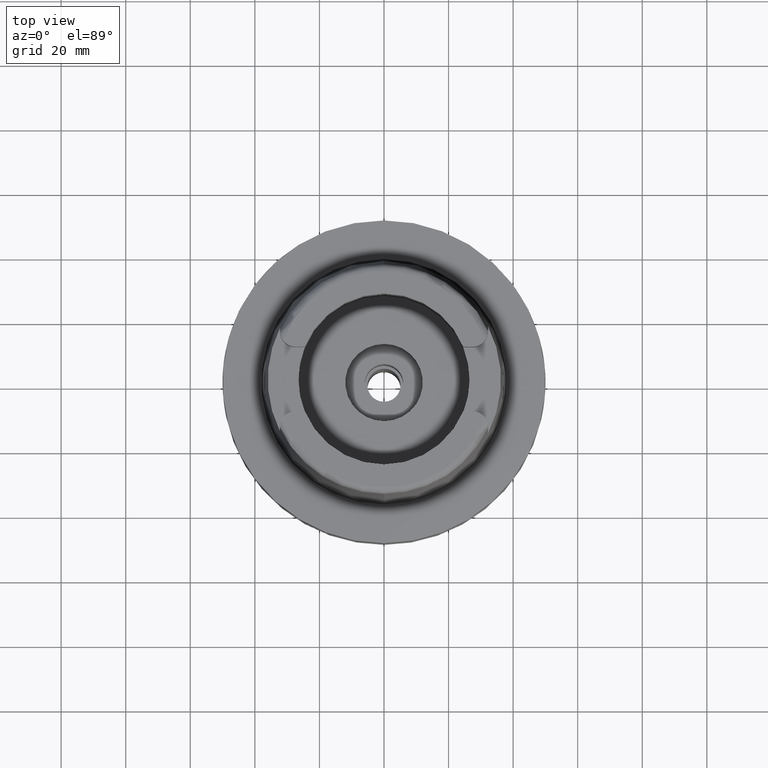
[diagram: clean part render]
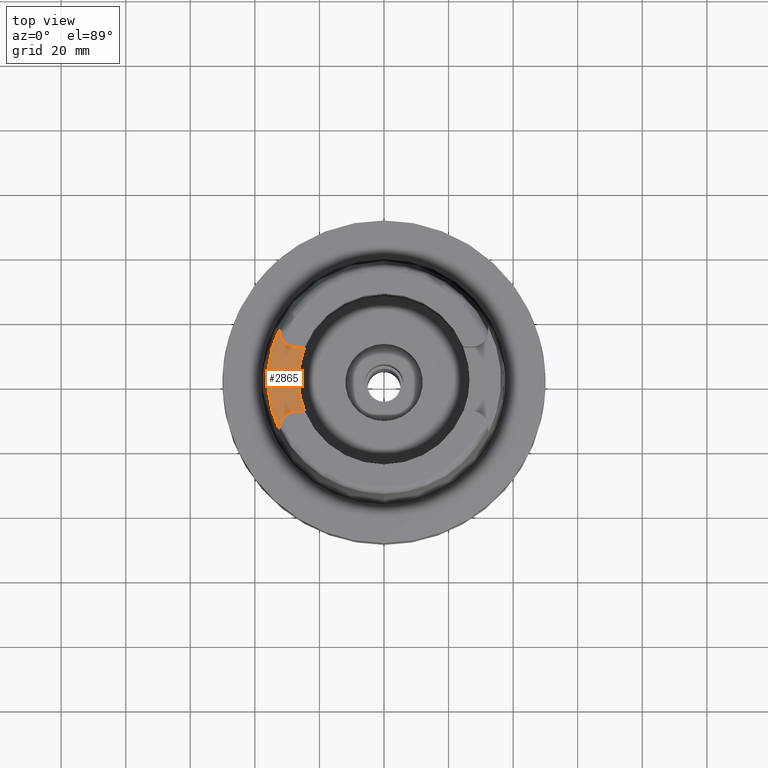
[diagram: same view with one face highlighted and labeled with its STEP entity id]
A machine part, top view. The second image highlights one B-rep face of the part: STEP entity #2865.
In plain terms, the highlighted planar face has unit normal (0, 0, 1).
Its self-contained STEP definition (entity closure, byte-faithful):
#83=CARTESIAN_POINT('',(0.E0,0.E0,4.E1));
#84=DIRECTION('',(0.E0,0.E0,-1.E0));
#85=DIRECTION('',(-8.958345712660E-1,-4.443876921391E-1,0.E0));
#86=AXIS2_PLACEMENT_3D('',#83,#84,#85);
#91=DIRECTION('',(4.825266097350E-6,-9.999999999884E-1,1.731606717193E-13));
#92=VECTOR('',#91,1.107910570861E0);
#93=CARTESIAN_POINT('',(-3.225000534596E1,1.599791057085E1,4.E1));
#94=LINE('',#93,#92);
#98=CARTESIAN_POINT('',(-2.737E1,1.489E1,4.E1));
#99=DIRECTION('',(0.E0,0.E0,1.E0));
#100=DIRECTION('',(-1.E0,0.E0,0.E0));
#101=AXIS2_PLACEMENT_3D('',#98,#99,#100);
#106=DIRECTION('',(1.E0,1.442003377037E-13,0.E0));
#107=VECTOR('',#106,2.833294842218E0);
#108=CARTESIAN_POINT('',(-2.737E1,1.001E1,4.E1));
#109=LINE('',#108,#107);
#113=CARTESIAN_POINT('',(0.E0,0.E0,4.E1));
#114=DIRECTION('',(0.E0,0.E0,1.E0));
#115=DIRECTION('',(-9.259134021805E-1,3.777358490566E-1,0.E0));
#116=AXIS2_PLACEMENT_3D('',#113,#114,#115);
#121=DIRECTION('',(-1.E0,1.435733797137E-13,0.E0));
#122=VECTOR('',#121,2.833294842218E0);
#123=CARTESIAN_POINT('',(-2.453670515778E1,-1.001E1,4.E1));
#124=LINE('',#123,#122);
#128=CARTESIAN_POINT('',(-2.737E1,-1.489E1,4.E1));
#129=DIRECTION('',(0.E0,0.E0,1.E0));
#130=DIRECTION('',(0.E0,1.E0,0.E0));
#131=AXIS2_PLACEMENT_3D('',#128,#129,#130);
#136=DIRECTION('',(1.119083709708E-6,-9.999999999994E-1,-1.731560047849E-13));
#137=VECTOR('',#136,1.107940431483E0);
#138=CARTESIAN_POINT('',(-3.225E1,-1.489E1,4.E1));
#139=LINE('',#138,#137);
#2450=CARTESIAN_POINT('',(-3.224999999999E1,-1.599793480981E1,4.E1));
#2451=CARTESIAN_POINT('',(-3.224999999999E1,1.599793480981E1,4.E1));
#2452=VERTEX_POINT('',#2450);
#2453=VERTEX_POINT('',#2451);
#2467=CARTESIAN_POINT('',(-3.225E1,1.489E1,4.E1));
#2468=VERTEX_POINT('',#2467);
#2469=CARTESIAN_POINT('',(-2.737E1,1.001E1,4.E1));
#2470=VERTEX_POINT('',#2469);
#2471=CARTESIAN_POINT('',(-2.453670515778E1,1.001E1,4.E1));
#2472=VERTEX_POINT('',#2471);
#2473=CARTESIAN_POINT('',(-2.453670515778E1,-1.001E1,4.E1));
#2474=VERTEX_POINT('',#2473);
#2475=CARTESIAN_POINT('',(-2.737E1,-1.001E1,4.E1));
#2476=VERTEX_POINT('',#2475);
#2477=CARTESIAN_POINT('',(-3.225E1,-1.489E1,4.E1));
#2478=VERTEX_POINT('',#2477);
#2843=CARTESIAN_POINT('',(0.E0,0.E0,4.E1));
#2844=DIRECTION('',(0.E0,0.E0,1.E0));
#2845=DIRECTION('',(0.E0,1.E0,0.E0));
#2846=AXIS2_PLACEMENT_3D('',#2843,#2844,#2845);
#2847=PLANE('',#2846);
#2848=ORIENTED_EDGE('',*,*,#2818,.T.);
#2850=ORIENTED_EDGE('',*,*,#2849,.T.);
#2852=ORIENTED_EDGE('',*,*,#2851,.T.);
#2854=ORIENTED_EDGE('',*,*,#2853,.T.);
#2856=ORIENTED_EDGE('',*,*,#2855,.T.);
#2858=ORIENTED_EDGE('',*,*,#2857,.T.);
#2860=ORIENTED_EDGE('',*,*,#2859,.T.);
#2862=ORIENTED_EDGE('',*,*,#2861,.T.);
#2863=EDGE_LOOP('',(#2848,#2850,#2852,#2854,#2856,#2858,#2860,#2862));
#2864=FACE_OUTER_BOUND('',#2863,.F.);
#87=CIRCLE('',#86,3.599995025244E1);
#102=CIRCLE('',#101,4.88E0);
#117=CIRCLE('',#116,2.65E1);
#132=CIRCLE('',#131,4.88E0);
#2818=EDGE_CURVE('',#2452,#2453,#87,.T.);
#2849=EDGE_CURVE('',#2453,#2468,#94,.T.);
#2851=EDGE_CURVE('',#2468,#2470,#102,.T.);
#2853=EDGE_CURVE('',#2470,#2472,#109,.T.);
#2855=EDGE_CURVE('',#2472,#2474,#117,.T.);
#2857=EDGE_CURVE('',#2474,#2476,#124,.T.);
#2859=EDGE_CURVE('',#2476,#2478,#132,.T.);
#2861=EDGE_CURVE('',#2478,#2452,#139,.T.);
#2865=ADVANCED_FACE('',(#2864),#2847,.T.);